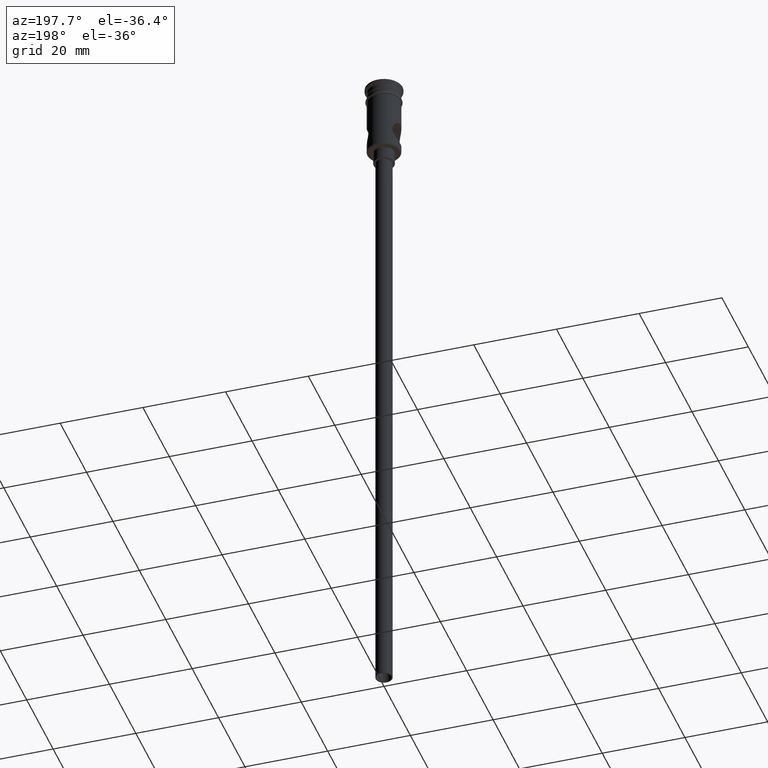
[diagram: clean part render]
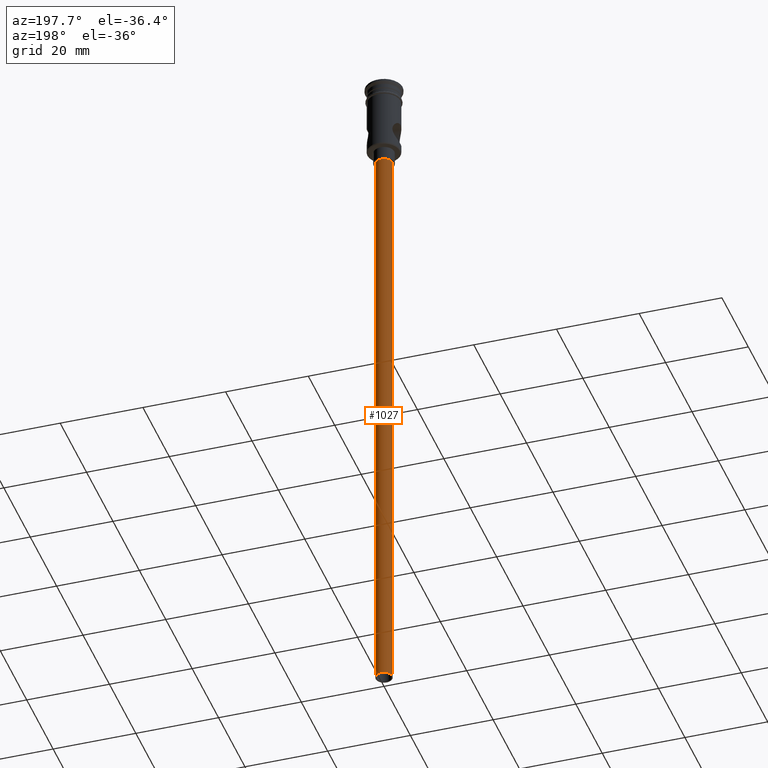
[diagram: same view with one face highlighted and labeled with its STEP entity id]
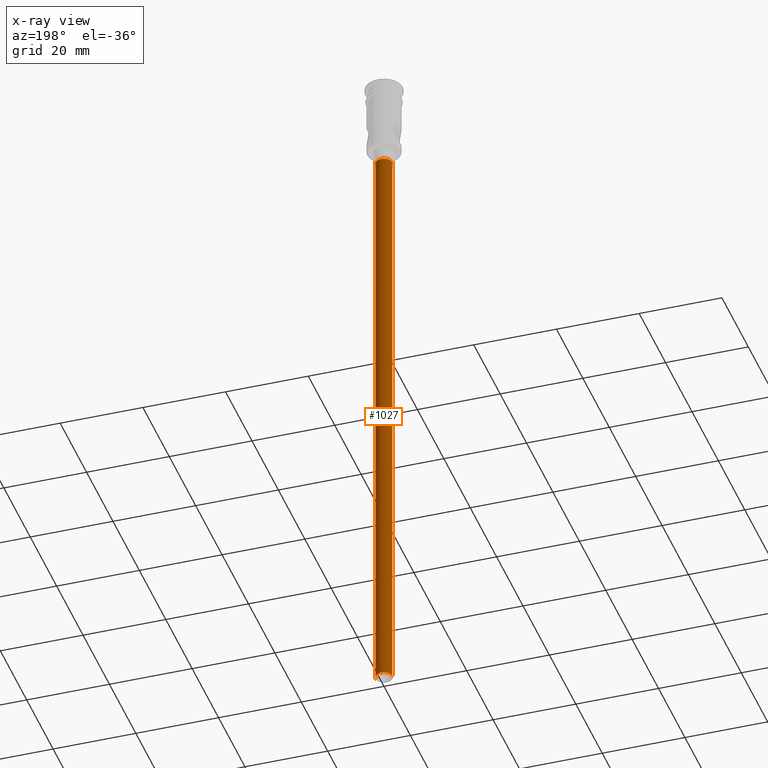
[diagram: x-ray of the same camera — body ghosted, the highlighted face saturated]
A machine part, auxiliary view. The second image highlights one B-rep face of the part: STEP entity #1027.
The next image is the same camera in x-ray: the body ghosted, the highlighted face saturated — about 0% of this face is hidden behind the body in this view.
In plain terms, the highlighted cylindrical surface (edge-blend (fillet) strip) has radius 2 mm, axis along (-0, -0, 1).
Its self-contained STEP definition (entity closure, byte-faithful):
#55 = ORIENTED_EDGE ( 'NONE', *, *, #374, .T. ) ;
#115 = AXIS2_PLACEMENT_3D ( 'NONE', #987, #451, #1100 ) ;
#159 = EDGE_CURVE ( 'NONE', #1074, #477, #462, .T. ) ;
#274 = AXIS2_PLACEMENT_3D ( 'NONE', #467, #337, #1437 ) ;
#298 = EDGE_CURVE ( 'NONE', #580, #1396, #369, .T. ) ;
#337 = DIRECTION ( 'NONE',  ( 0.000000000000000000, 0.000000000000000000, -1.000000000000000000 ) ) ;
#369 = CIRCLE ( 'NONE', #1180, 2.000000000000000000 ) ;
#374 = EDGE_CURVE ( 'NONE', #580, #1074, #406, .T. ) ;
#406 = LINE ( 'NONE', #786, #1182 ) ;
#451 = DIRECTION ( 'NONE',  ( -0.000000000000000000, -0.000000000000000000, 1.000000000000000000 ) ) ;
#462 = CIRCLE ( 'NONE', #274, 2.000000000000000000 ) ;
#467 = CARTESIAN_POINT ( 'NONE',  ( 0.000000000000000000, 0.000000000000000000, -20.99999999999999645 ) ) ;
#476 = LINE ( 'NONE', #1231, #876 ) ;
#477 = VERTEX_POINT ( 'NONE', #510 ) ;
#510 = CARTESIAN_POINT ( 'NONE',  ( 2.000000000000000000, 0.000000000000000000, -20.99999999999999645 ) ) ;
#523 = ORIENTED_EDGE ( 'NONE', *, *, #159, .T. ) ;
#566 = EDGE_LOOP ( 'NONE', ( #614, #55, #523, #1060 ) ) ;
#579 = DIRECTION ( 'NONE',  ( -0.000000000000000000, -0.000000000000000000, 1.000000000000000000 ) ) ;
#580 = VERTEX_POINT ( 'NONE', #1308 ) ;
#614 = ORIENTED_EDGE ( 'NONE', *, *, #298, .F. ) ;
#663 = EDGE_CURVE ( 'NONE', #1396, #477, #476, .T. ) ;
#743 = CARTESIAN_POINT ( 'NONE',  ( 2.000000000000000000, 0.000000000000000000, -167.9999999999999716 ) ) ;
#786 = CARTESIAN_POINT ( 'NONE',  ( -2.000000000000000000, 2.449293598294706414E-16, -167.9999999999999716 ) ) ;
#832 = CARTESIAN_POINT ( 'NONE',  ( 0.000000000000000000, 0.000000000000000000, -167.9999999999999716 ) ) ;
#842 = DIRECTION ( 'NONE',  ( -1.000000000000000000, 0.000000000000000000, 0.000000000000000000 ) ) ;
#876 = VECTOR ( 'NONE', #1218, 1000.000000000000000 ) ;
#987 = CARTESIAN_POINT ( 'NONE',  ( 0.000000000000000000, 0.000000000000000000, -167.9999999999999716 ) ) ;
#1027 = ADVANCED_FACE ( 'NONE', ( #1325 ), #1210, .T. ) ;
#1060 = ORIENTED_EDGE ( 'NONE', *, *, #663, .F. ) ;
#1074 = VERTEX_POINT ( 'NONE', #1112 ) ;
#1100 = DIRECTION ( 'NONE',  ( 1.000000000000000000, 0.000000000000000000, 0.000000000000000000 ) ) ;
#1112 = CARTESIAN_POINT ( 'NONE',  ( -2.000000000000000000, 2.449293598294706414E-16, -20.99999999999999645 ) ) ;
#1166 = DIRECTION ( 'NONE',  ( 0.000000000000000000, 0.000000000000000000, -1.000000000000000000 ) ) ;
#1180 = AXIS2_PLACEMENT_3D ( 'NONE', #832, #1166, #842 ) ;
#1182 = VECTOR ( 'NONE', #579, 1000.000000000000000 ) ;
#1210 = CYLINDRICAL_SURFACE ( 'NONE', #115, 2.000000000000000000 ) ;
#1218 = DIRECTION ( 'NONE',  ( -0.000000000000000000, -0.000000000000000000, 1.000000000000000000 ) ) ;
#1231 = CARTESIAN_POINT ( 'NONE',  ( 2.000000000000000000, 0.000000000000000000, -167.9999999999999716 ) ) ;
#1308 = CARTESIAN_POINT ( 'NONE',  ( -2.000000000000000000, 2.449293598294706414E-16, -167.9999999999999716 ) ) ;
#1325 = FACE_OUTER_BOUND ( 'NONE', #566, .T. ) ;
#1396 = VERTEX_POINT ( 'NONE', #743 ) ;
#1437 = DIRECTION ( 'NONE',  ( -1.000000000000000000, 0.000000000000000000, 0.000000000000000000 ) ) ;